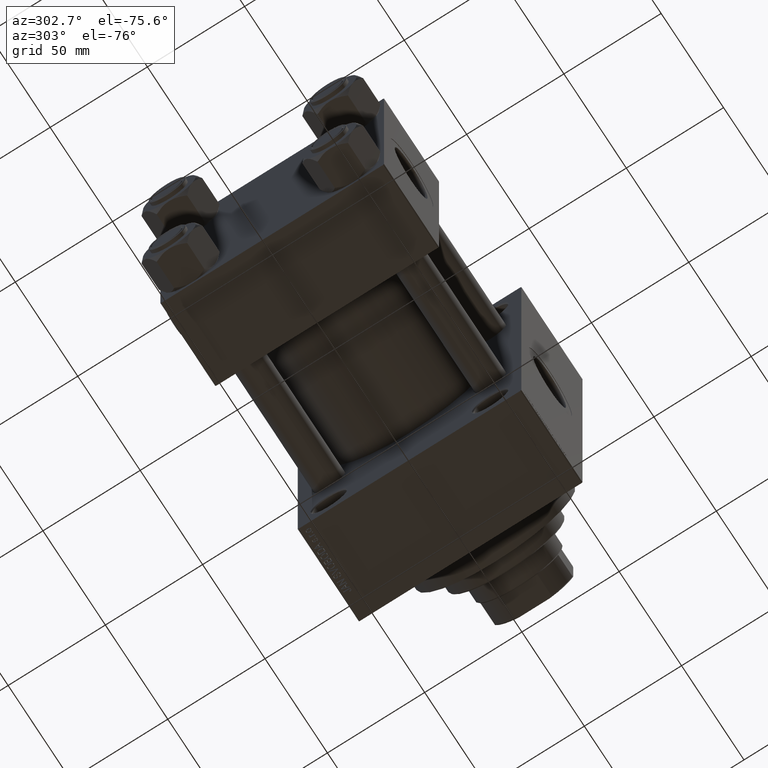
[diagram: clean part render]
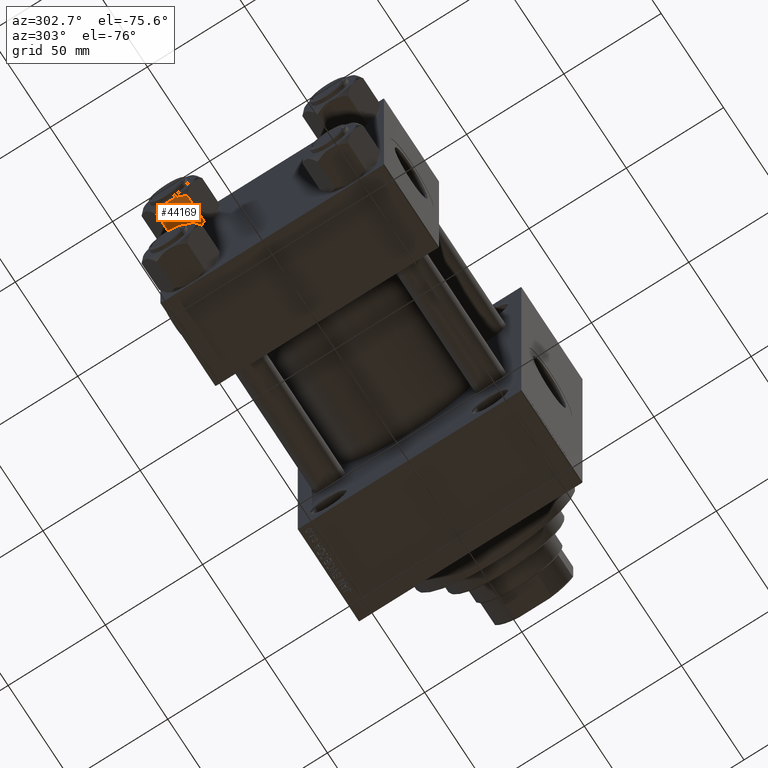
[diagram: same view with one face highlighted and labeled with its STEP entity id]
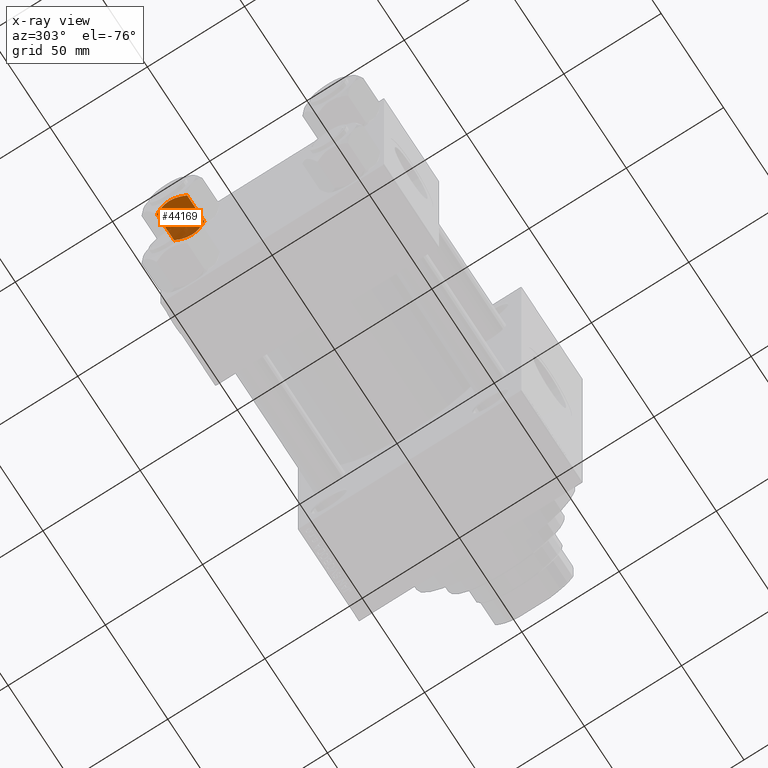
[diagram: x-ray of the same camera — body ghosted, the highlighted face saturated]
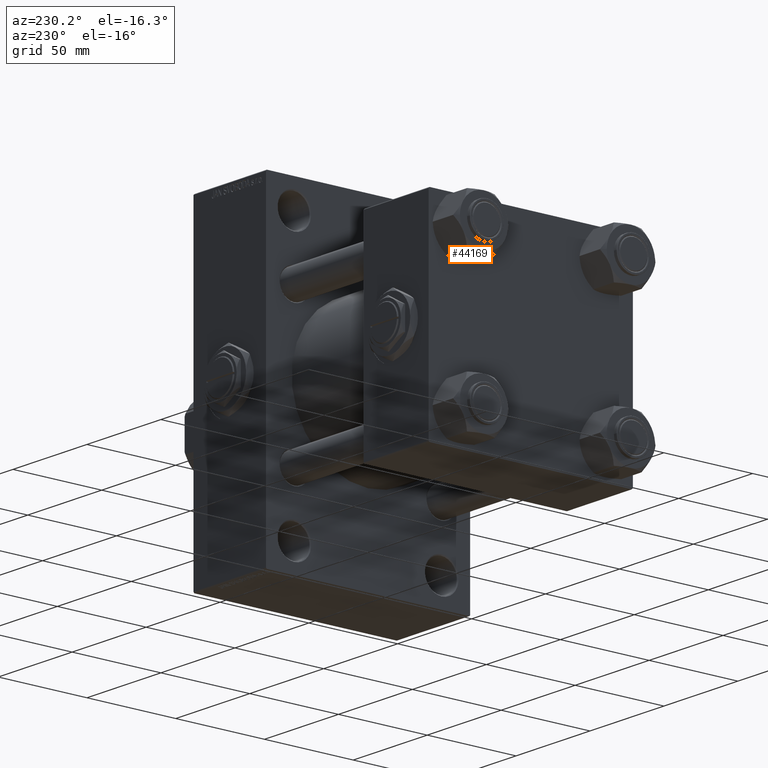
[diagram: same view with one face highlighted and labeled with its STEP entity id]
A machine part, auxiliary view. The second image highlights one B-rep face of the part: STEP entity #44169.
The next image is the same camera in x-ray: the body ghosted, the highlighted face saturated — about 26% of this face is hidden behind the body in this view.
A second angle (auxiliary view) of the same face is appended — the face is thin or edge-on in the first view.
In plain terms, the highlighted planar face has unit normal (0, 0, 1).
Its self-contained STEP definition (entity closure, byte-faithful):
#367 = CARTESIAN_POINT ( 'NONE',  ( 7.030888348548061551, 13.52731680711294082, -1.709337883550299697 ) ) ;
#429 = DIRECTION ( 'NONE',  ( 1.110578409716265846E-16, -1.000000000000000000, 0.000000000000000000 ) ) ;
#790 = ORIENTED_EDGE ( 'NONE', *, *, #26996, .F. ) ;
#1128 = EDGE_CURVE ( 'NONE', #18282, #34310, #4882, .T. ) ;
#1829 = CARTESIAN_POINT ( 'NONE',  ( -1.335584685993416398, 13.52731680711293905, -18.00000000000000000 ) ) ;
#1994 = ORIENTED_EDGE ( 'NONE', *, *, #6161, .F. ) ;
#3397 = DIRECTION ( 'NONE',  ( -1.000000000000000000, -1.110578409716265846E-16, 0.000000000000000000 ) ) ;
#3648 = CARTESIAN_POINT ( 'NONE',  ( 6.427364677720470709, 13.52731680711294082, -1.438506937155140442 ) ) ;
#4203 = PLANE ( 'NONE',  #30702 ) ;
#4577 = LINE ( 'NONE', #12622, #8648 ) ;
#4882 = B_SPLINE_CURVE_WITH_KNOTS ( 'NONE', 3,
 ( #23975, #367, #3648, #16200, #18968, #7915, #46427, #30560 ),
 .UNSPECIFIED., .F., .F.,
 ( 4, 2, 2, 4 ),
 ( 0.01980594295952729095, 0.02179054093496183425, 0.02377513891039637409, 0.02774433486126545723 ),
 .UNSPECIFIED. ) ;
#5088 = CARTESIAN_POINT ( 'NONE',  ( 0.3330234424833817819, 13.52731680711293905, -18.00000000000000355 ) ) ;
#5598 = CARTESIAN_POINT ( 'NONE',  ( -2.638177715023110714, 13.52731680711293905, -17.79984593233011481 ) ) ;
#6161 = EDGE_CURVE ( 'NONE', #34310, #28015, #34178, .T. ) ;
#6348 = CARTESIAN_POINT ( 'NONE',  ( -0.6693083573771214656, 13.52731680711293727, -0.01249333081108175945 ) ) ;
#6608 = CARTESIAN_POINT ( 'NONE',  ( -4.557734399832416905, 13.52731680711293905, -0.7341470174115153347 ) ) ;
#6645 = EDGE_CURVE ( 'NONE', #17528, #48586, #41168, .T. ) ;
#7486 = CARTESIAN_POINT ( 'NONE',  ( -7.809999999999996945, 13.52731680711293727, -18.00000000000000000 ) ) ;
#7915 = CARTESIAN_POINT ( 'NONE',  ( 2.638177715023106717, 13.52731680711294260, -0.2001540676698861931 ) ) ;
#8382 = CARTESIAN_POINT ( 'NONE',  ( -1.502314598737160017E-15, 13.52731680711293727, -18.00000000000000000 ) ) ;
#8616 = CARTESIAN_POINT ( 'NONE',  ( 6.422751913021828685, 13.52731680711293905, -16.56349088907410305 ) ) ;
#8648 = VECTOR ( 'NONE', #39324, 1000.000000000000000 ) ;
#9424 = CARTESIAN_POINT ( 'NONE',  ( -7.809999999999996945, 13.52731680711293727, -1.999999999999998224 ) ) ;
#10232 = ORIENTED_EDGE ( 'NONE', *, *, #30960, .F. ) ;
#10821 = CARTESIAN_POINT ( 'NONE',  ( -7.809999999999996945, 13.52731680711293727, -16.00000000000000000 ) ) ;
#11036 = CARTESIAN_POINT ( 'NONE',  ( 7.622943475354644782, 13.52731680711293727, -2.000000000000000000 ) ) ;
#11351 = VERTEX_POINT ( 'NONE', #9424 ) ;
#12622 = CARTESIAN_POINT ( 'NONE',  ( -7.809999999999996945, 13.52731680711293727, -1.999999999999998224 ) ) ;
#12641 = CARTESIAN_POINT ( 'NONE',  ( 0.6693083573771205774, 13.52731680711293727, -17.98750666918891739 ) ) ;
#12851 = VERTEX_POINT ( 'NONE', #25472 ) ;
#13463 = B_SPLINE_CURVE_WITH_KNOTS ( 'NONE', 3,
 ( #8382, #5088, #12641, #20414, #39828, #20655, #20907, #19929, #23950, #8616, #24192, #27969 ),
 .UNSPECIFIED., .F., .F.,
 ( 4, 2, 2, 2, 2, 4 ),
 ( 0.02774433486126544335, 0.02873404020403548184, 0.02972374554680552033, 0.03170315623234559732, 0.03368256691788566737, 0.03566197760342574435 ),
 .UNSPECIFIED. ) ;
#13943 = VERTEX_POINT ( 'NONE', #20458 ) ;
#14135 = EDGE_CURVE ( 'NONE', #17528, #11351, #46569, .T. ) ;
#14403 = CARTESIAN_POINT ( 'NONE',  ( -1.333889873825134353, 13.52731680711293905, -0.06156641003439419085 ) ) ;
#14747 = EDGE_CURVE ( 'NONE', #47990, #12851, #13463, .T. ) ;
#15069 = VECTOR ( 'NONE', #17972, 1000.000000000000000 ) ;
#15744 = ORIENTED_EDGE ( 'NONE', *, *, #29001, .F. ) ;
#15765 = DIRECTION ( 'NONE',  ( 1.000000000000000000, 1.110578409716265846E-16, 0.000000000000000000 ) ) ;
#16200 = CARTESIAN_POINT ( 'NONE',  ( 5.189513245496327976, 13.52731680711294082, -0.9501108431732597781 ) ) ;
#17166 = CARTESIAN_POINT ( 'NONE',  ( -1.502314598737160017E-15, 13.52731680711293727, -18.00000000000000000 ) ) ;
#17528 = VERTEX_POINT ( 'NONE', #36590 ) ;
#17972 = DIRECTION ( 'NONE',  ( 1.000000000000000000, 1.110578409716265846E-16, 0.000000000000000000 ) ) ;
#18282 = VERTEX_POINT ( 'NONE', #11036 ) ;
#18657 = CARTESIAN_POINT ( 'NONE',  ( -0.3330234424833839468, 13.52731680711293727, -8.499975625696903903E-16 ) ) ;
#18788 = FACE_OUTER_BOUND ( 'NONE', #37058, .T. ) ;
#18874 = CARTESIAN_POINT ( 'NONE',  ( -1.502314598737160017E-15, 13.52731680711293727, 0.000000000000000000 ) ) ;
#18968 = CARTESIAN_POINT ( 'NONE',  ( 4.553769687922307519, 13.52731680711294260, -0.7327291995145179815 ) ) ;
#19929 = CARTESIAN_POINT ( 'NONE',  ( 4.557734399832415129, 13.52731680711294260, -17.26585298258848411 ) ) ;
#19993 = VECTOR ( 'NONE', #47299, 1000.000000000000000 ) ;
#20414 = CARTESIAN_POINT ( 'NONE',  ( 1.333889873825133021, 13.52731680711294260, -17.93843358996560511 ) ) ;
#20458 = CARTESIAN_POINT ( 'NONE',  ( 7.810000000000000497, 13.52731680711293905, -1.999999999999998224 ) ) ;
#20655 = CARTESIAN_POINT ( 'NONE',  ( 2.644243758052990945, 13.52731680711294260, -17.75917188019760218 ) ) ;
#20907 = CARTESIAN_POINT ( 'NONE',  ( 3.287826776903156833, 13.52731680711294082, -17.61954155462466431 ) ) ;
#21241 = CARTESIAN_POINT ( 'NONE',  ( 7.810000000000001386, 13.52731680711293905, -18.00000000000000000 ) ) ;
#21532 = EDGE_CURVE ( 'NONE', #40790, #13943, #29312, .T. ) ;
#21742 = CARTESIAN_POINT ( 'NONE',  ( -7.809999999999996945, 13.52731680711293727, -16.00000000000000000 ) ) ;
#21933 = CARTESIAN_POINT ( 'NONE',  ( -5.184073258379408244, 13.52731680711293727, -0.9481437906500859158 ) ) ;
#23095 = CARTESIAN_POINT ( 'NONE',  ( -1.502314598737160017E-15, 13.52731680711293727, -18.00000000000000000 ) ) ;
#23271 = ORIENTED_EDGE ( 'NONE', *, *, #14135, .T. ) ;
#23378 = VECTOR ( 'NONE', #44440, 1000.000000000000000 ) ;
#23893 = CARTESIAN_POINT ( 'NONE',  ( 7.810000000000000497, 13.52731680711293905, -16.00000000000000000 ) ) ;
#23896 = ORIENTED_EDGE ( 'NONE', *, *, #21532, .F. ) ;
#23950 = CARTESIAN_POINT ( 'NONE',  ( 5.184073258379406468, 13.52731680711293905, -17.05185620934990709 ) ) ;
#23975 = CARTESIAN_POINT ( 'NONE',  ( 7.622943475354644782, 13.52731680711293727, -2.000000000000000000 ) ) ;
#24192 = CARTESIAN_POINT ( 'NONE',  ( 7.030203932307582448, 13.52731680711293727, -16.29099812210859710 ) ) ;
#24463 = CARTESIAN_POINT ( 'NONE',  ( -7.622943475354648335, 13.52731680711293727, -16.00000000000000000 ) ) ;
#25199 = CARTESIAN_POINT ( 'NONE',  ( -1.502314598737160017E-15, 13.52731680711293727, 0.000000000000000000 ) ) ;
#25447 = VECTOR ( 'NONE', #3397, 1000.000000000000000 ) ;
#25472 = CARTESIAN_POINT ( 'NONE',  ( 7.622943475354644782, 13.52731680711293727, -16.00000000000000000 ) ) ;
#25704 = CARTESIAN_POINT ( 'NONE',  ( -3.287826776903158166, 13.52731680711293905, -0.3804584453753378503 ) ) ;
#26207 = VECTOR ( 'NONE', #37755, 1000.000000000000000 ) ;
#26996 = EDGE_CURVE ( 'NONE', #48586, #47990, #30635, .T. ) ;
#27969 = CARTESIAN_POINT ( 'NONE',  ( 7.622943475354644782, 13.52731680711293727, -16.00000000000000000 ) ) ;
#28015 = VERTEX_POINT ( 'NONE', #34514 ) ;
#28178 = EDGE_CURVE ( 'NONE', #12851, #40790, #37002, .T. ) ;
#29001 = EDGE_CURVE ( 'NONE', #28015, #11351, #37638, .T. ) ;
#29312 = LINE ( 'NONE', #21241, #23378 ) ;
#29743 = CARTESIAN_POINT ( 'NONE',  ( -6.422751913021828685, 13.52731680711293905, -1.436509110925899391 ) ) ;
#30065 = CARTESIAN_POINT ( 'NONE',  ( -7.809999999999996945, 13.52731680711293727, -1.999999999999998224 ) ) ;
#30560 = CARTESIAN_POINT ( 'NONE',  ( -1.502314598737160017E-15, 13.52731680711293727, 0.000000000000000000 ) ) ;
#30635 = B_SPLINE_CURVE_WITH_KNOTS ( 'NONE', 3,
 ( #24463, #47402, #36312, #32273, #47655, #5598, #1829, #17166 ),
 .UNSPECIFIED., .F., .F.,
 ( 4, 2, 2, 4 ),
 ( 0.01980594295952728401, 0.02179054093496182384, 0.02377513891039636368, 0.02774433486126544335 ),
 .UNSPECIFIED. ) ;
#30702 = AXIS2_PLACEMENT_3D ( 'NONE', #7486, #429, #15765 ) ;
#30960 = EDGE_CURVE ( 'NONE', #13943, #18282, #4577, .T. ) ;
#32273 = CARTESIAN_POINT ( 'NONE',  ( -5.189513245496333305, 13.52731680711293727, -17.04988915682674033 ) ) ;
#34178 = B_SPLINE_CURVE_WITH_KNOTS ( 'NONE', 3,
 ( #25199, #18657, #6348, #14403, #40592, #36803, #25704, #6608, #21933, #29743, #49642, #38560 ),
 .UNSPECIFIED., .F., .F.,
 ( 4, 2, 2, 2, 2, 4 ),
 ( 0.02774433486126545723, 0.02873404020403549572, 0.02972374554680553421, 0.03170315623234561120, 0.03368256691788568125, 0.03566197760342575823 ),
 .UNSPECIFIED. ) ;
#34310 = VERTEX_POINT ( 'NONE', #18874 ) ;
#34514 = CARTESIAN_POINT ( 'NONE',  ( -7.622943475354648335, 13.52731680711293727, -2.000000000000000000 ) ) ;
#35365 = ORIENTED_EDGE ( 'NONE', *, *, #6645, .F. ) ;
#36312 = CARTESIAN_POINT ( 'NONE',  ( -6.427364677720475150, 13.52731680711293905, -16.56149306284486755 ) ) ;
#36590 = CARTESIAN_POINT ( 'NONE',  ( -7.809999999999996945, 13.52731680711293727, -16.00000000000000000 ) ) ;
#36803 = CARTESIAN_POINT ( 'NONE',  ( -2.644243758052991389, 13.52731680711293905, -0.2408281198023998759 ) ) ;
#37002 = LINE ( 'NONE', #10821, #26207 ) ;
#37058 = EDGE_LOOP ( 'NONE', ( #35365, #23271, #15744, #1994, #41451, #10232, #23896, #39423, #38306, #790 ) ) ;
#37638 = LINE ( 'NONE', #30065, #25447 ) ;
#37755 = DIRECTION ( 'NONE',  ( 1.000000000000000000, 1.110578409716265846E-16, 0.000000000000000000 ) ) ;
#38306 = ORIENTED_EDGE ( 'NONE', *, *, #14747, .F. ) ;
#38560 = CARTESIAN_POINT ( 'NONE',  ( -7.622943475354648335, 13.52731680711293727, -2.000000000000000000 ) ) ;
#39324 = DIRECTION ( 'NONE',  ( -1.000000000000000000, -1.110578409716265846E-16, 0.000000000000000000 ) ) ;
#39423 = ORIENTED_EDGE ( 'NONE', *, *, #28178, .F. ) ;
#39828 = CARTESIAN_POINT ( 'NONE',  ( 1.663410456966174067, 13.52731680711294082, -17.90195050864300441 ) ) ;
#40592 = CARTESIAN_POINT ( 'NONE',  ( -1.663410456966174955, 13.52731680711293905, -0.09804949135699160545 ) ) ;
#40790 = VERTEX_POINT ( 'NONE', #23893 ) ;
#41168 = LINE ( 'NONE', #21742, #15069 ) ;
#41451 = ORIENTED_EDGE ( 'NONE', *, *, #1128, .F. ) ;
#42794 = CARTESIAN_POINT ( 'NONE',  ( -7.809999999999996945, 13.52731680711293727, -18.00000000000000000 ) ) ;
#44169 = ADVANCED_FACE ( 'NONE', ( #18788 ), #4203, .F. ) ;
#44440 = DIRECTION ( 'NONE',  ( -0.000000000000000000, -0.000000000000000000, 1.000000000000000000 ) ) ;
#46427 = CARTESIAN_POINT ( 'NONE',  ( 1.335584685993415732, 13.52731680711294260, -9.825582188149885905E-16 ) ) ;
#46569 = LINE ( 'NONE', #42794, #19993 ) ;
#47003 = CARTESIAN_POINT ( 'NONE',  ( -7.622943475354648335, 13.52731680711293727, -16.00000000000000000 ) ) ;
#47299 = DIRECTION ( 'NONE',  ( -0.000000000000000000, -0.000000000000000000, 1.000000000000000000 ) ) ;
#47402 = CARTESIAN_POINT ( 'NONE',  ( -7.030888348548059774, 13.52731680711293549, -16.29066211644969897 ) ) ;
#47655 = CARTESIAN_POINT ( 'NONE',  ( -4.553769687922306630, 13.52731680711293727, -17.26727080048548046 ) ) ;
#47990 = VERTEX_POINT ( 'NONE', #23095 ) ;
#48586 = VERTEX_POINT ( 'NONE', #47003 ) ;
#49642 = CARTESIAN_POINT ( 'NONE',  ( -7.030203932307583337, 13.52731680711293372, -1.709001877891392907 ) ) ;